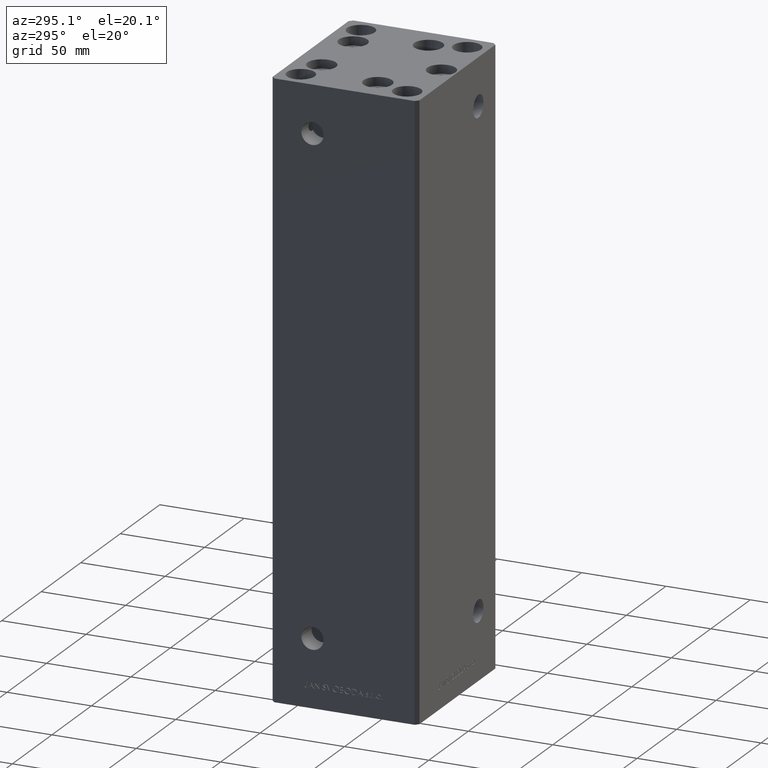
[diagram: clean part render]
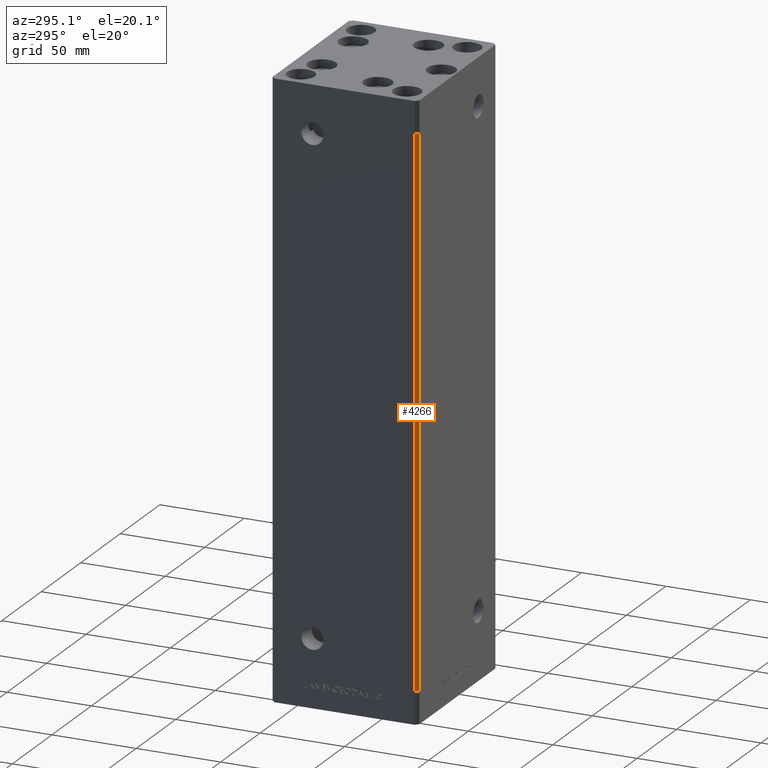
[diagram: same view with one face highlighted and labeled with its STEP entity id]
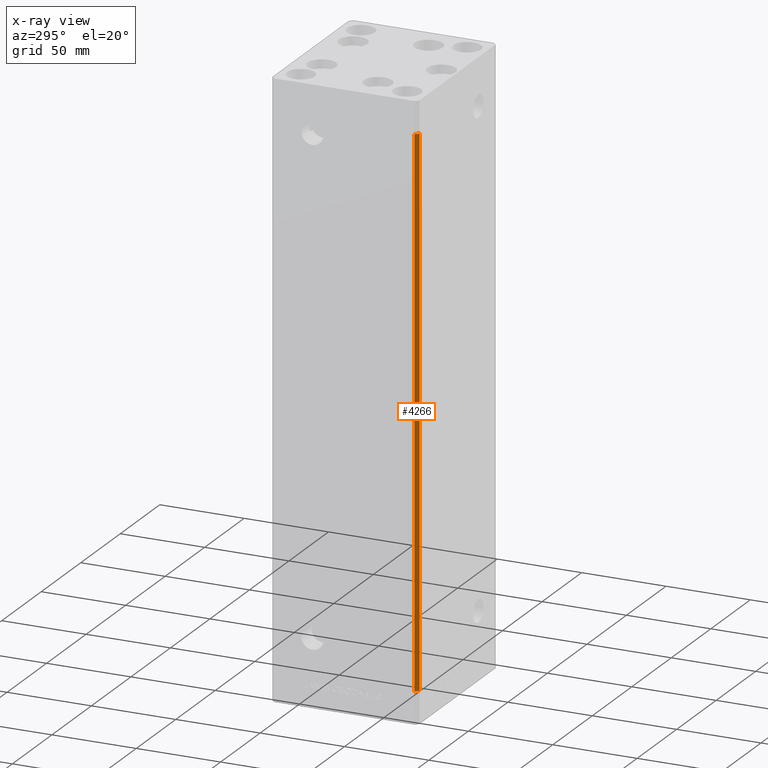
[diagram: x-ray of the same camera — body ghosted, the highlighted face saturated]
A machine part, auxiliary view. The second image highlights one B-rep face of the part: STEP entity #4266.
The next image is the same camera in x-ray: the body ghosted, the highlighted face saturated — about 0% of this face is hidden behind the body in this view.
In plain terms, the highlighted planar face has unit normal (0.7071, 0.7071, 0).
Its self-contained STEP definition (entity closure, byte-faithful):
#987 = VECTOR ( 'NONE', #15870, 1000.000000000000114 ) ;
#1733 = LINE ( 'NONE', #43271, #47540 ) ;
#3360 = CARTESIAN_POINT ( 'NONE',  ( -47.99999999999998579, -43.50000000000000000, 318.5000000000000000 ) ) ;
#4266 = ADVANCED_FACE ( 'NONE', ( #20888 ), #6455, .F. ) ;
#6455 = PLANE ( 'NONE',  #44908 ) ;
#9492 = LINE ( 'NONE', #38659, #987 ) ;
#10933 = CARTESIAN_POINT ( 'NONE',  ( -49.99999999999998579, -41.49999999999999289, 318.5000000000000000 ) ) ;
#11318 = ORIENTED_EDGE ( 'NONE', *, *, #14776, .F. ) ;
#13315 = DIRECTION ( 'NONE',  ( 0.7071067811865475727, 0.7071067811865475727, -0.000000000000000000 ) ) ;
#13449 = VERTEX_POINT ( 'NONE', #10933 ) ;
#14776 = EDGE_CURVE ( 'NONE', #13449, #44269, #1733, .T. ) ;
#15870 = DIRECTION ( 'NONE',  ( 0.7071067811865474617, -0.7071067811865474617, 0.000000000000000000 ) ) ;
#19431 = DIRECTION ( 'NONE',  ( -0.000000000000000000, -0.000000000000000000, -1.000000000000000000 ) ) ;
#19919 = EDGE_LOOP ( 'NONE', ( #44473, #35623, #11318, #36424 ) ) ;
#20888 = FACE_OUTER_BOUND ( 'NONE', #19919, .T. ) ;
#22461 = CARTESIAN_POINT ( 'NONE',  ( -49.99999999999998579, -41.49999999999999289, 318.5000000000000000 ) ) ;
#22684 = CARTESIAN_POINT ( 'NONE',  ( -49.99999999999998579, -41.49999999999999289, 0.000000000000000000 ) ) ;
#23524 = EDGE_CURVE ( 'NONE', #25945, #40481, #9492, .T. ) ;
#23603 = VECTOR ( 'NONE', #42851, 1000.000000000000000 ) ;
#25945 = VERTEX_POINT ( 'NONE', #22684 ) ;
#25964 = CARTESIAN_POINT ( 'NONE',  ( -47.99999999999998579, -43.50000000000000000, 0.000000000000000000 ) ) ;
#32578 = EDGE_CURVE ( 'NONE', #13449, #25945, #38420, .T. ) ;
#32983 = CARTESIAN_POINT ( 'NONE',  ( -47.99999999999998579, -43.50000000000000000, 318.5000000000000000 ) ) ;
#35623 = ORIENTED_EDGE ( 'NONE', *, *, #47716, .F. ) ;
#36424 = ORIENTED_EDGE ( 'NONE', *, *, #32578, .T. ) ;
#37079 = DIRECTION ( 'NONE',  ( -0.7071067811865474617, 0.7071067811865474617, 0.000000000000000000 ) ) ;
#38420 = LINE ( 'NONE', #22461, #38568 ) ;
#38568 = VECTOR ( 'NONE', #19431, 1000.000000000000000 ) ;
#38659 = CARTESIAN_POINT ( 'NONE',  ( -49.99999999999998579, -41.49999999999999289, 0.000000000000000000 ) ) ;
#38803 = LINE ( 'NONE', #3360, #23603 ) ;
#39726 = DIRECTION ( 'NONE',  ( 0.7071067811865474617, -0.7071067811865474617, 0.000000000000000000 ) ) ;
#40387 = CARTESIAN_POINT ( 'NONE',  ( -49.99999999999998579, -41.49999999999999289, 318.5000000000000000 ) ) ;
#40481 = VERTEX_POINT ( 'NONE', #25964 ) ;
#42851 = DIRECTION ( 'NONE',  ( -0.000000000000000000, -0.000000000000000000, -1.000000000000000000 ) ) ;
#43271 = CARTESIAN_POINT ( 'NONE',  ( -49.99999999999998579, -41.49999999999999289, 318.5000000000000000 ) ) ;
#44269 = VERTEX_POINT ( 'NONE', #32983 ) ;
#44473 = ORIENTED_EDGE ( 'NONE', *, *, #23524, .T. ) ;
#44908 = AXIS2_PLACEMENT_3D ( 'NONE', #40387, #13315, #37079 ) ;
#47540 = VECTOR ( 'NONE', #39726, 1000.000000000000114 ) ;
#47716 = EDGE_CURVE ( 'NONE', #44269, #40481, #38803, .T. ) ;